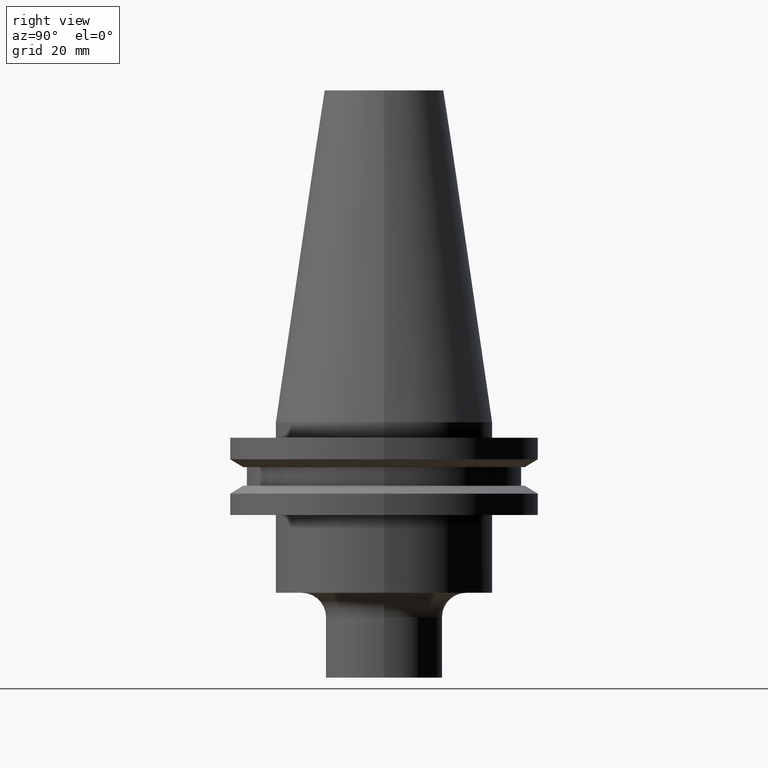
[diagram: clean part render]
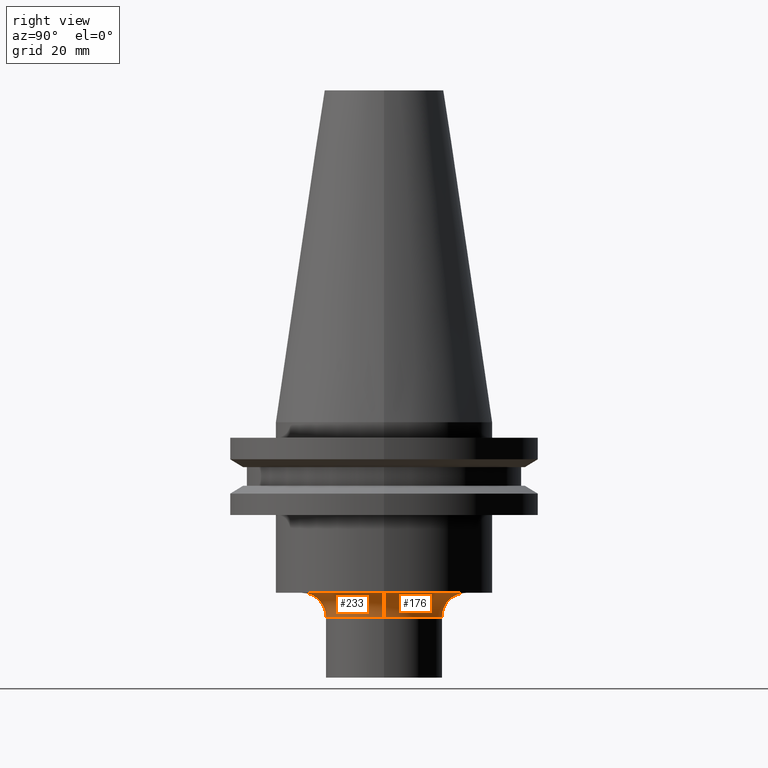
[diagram: same view with one multi-face feature highlighted, each face labeled with its STEP entity id]
A machine part, right view. The highlighted faces form ONE feature: a constant-radius fillet chain: 2 tangent blend faces with common blend radius 5 mm. The faces share edges in the B-rep.
Their STEP definitions:
[1] entity #176 (Torus):
#33 = EDGE_CURVE ( 'NONE', #762, #588, #662, .T. ) ;
#36 = ORIENTED_EDGE ( 'NONE', *, *, #749, .F. ) ;
#39 = AXIS2_PLACEMENT_3D ( 'NONE', #694, #623, #521 ) ;
#47 = DIRECTION ( 'NONE',  ( 1.000000000000000000, 0.000000000000000000, 0.000000000000000000 ) ) ;
#50 = DIRECTION ( 'NONE',  ( -0.000000000000000000, -0.000000000000000000, 1.000000000000000000 ) ) ;
#122 = EDGE_LOOP ( 'NONE', ( #36, #203, #319, #477 ) ) ;
#152 = CARTESIAN_POINT ( 'NONE',  ( -17.00000000000000000, 2.081899558550500280E-15, -35.04999999999999716 ) ) ;
#174 = CARTESIAN_POINT ( 'NONE',  ( 0.000000000000000000, 0.000000000000000000, -40.04999999999999716 ) ) ;
#176 = ADVANCED_FACE ( 'NONE', ( #649 ), #379, .F. ) ;
#195 = DIRECTION ( 'NONE',  ( -0.000000000000000000, -0.000000000000000000, 1.000000000000000000 ) ) ;
#203 = ORIENTED_EDGE ( 'NONE', *, *, #33, .F. ) ;
#260 = VERTEX_POINT ( 'NONE', #403 ) ;
#273 = CARTESIAN_POINT ( 'NONE',  ( -12.00000000000000000, 1.469576158976823947E-15, -40.04999999999999716 ) ) ;
#310 = CARTESIAN_POINT ( 'NONE',  ( 0.000000000000000000, 0.000000000000000000, -40.04999999999999716 ) ) ;
#316 = DIRECTION ( 'NONE',  ( 1.224646799147353207E-16, 1.000000000000000000, 0.000000000000000000 ) ) ;
#319 = ORIENTED_EDGE ( 'NONE', *, *, #613, .T. ) ;
#341 = DIRECTION ( 'NONE',  ( 0.000000000000000000, 0.000000000000000000, -1.000000000000000000 ) ) ;
#379 = TOROIDAL_SURFACE ( 'NONE', #431, 17.00000000000000000, 4.999999999999999112 ) ;
#401 = EDGE_CURVE ( 'NONE', #260, #482, #533, .T. ) ;
#403 = CARTESIAN_POINT ( 'NONE',  ( 12.00000000000000000, 0.000000000000000000, -40.04999999999999716 ) ) ;
#420 = CARTESIAN_POINT ( 'NONE',  ( 17.00000000000000000, 0.000000000000000000, -35.04999999999999716 ) ) ;
#428 = DIRECTION ( 'NONE',  ( -1.000000000000000000, 1.224646799147353454E-16, 0.000000000000000000 ) ) ;
#431 = AXIS2_PLACEMENT_3D ( 'NONE', #174, #50, #47 ) ;
#477 = ORIENTED_EDGE ( 'NONE', *, *, #401, .T. ) ;
#482 = VERTEX_POINT ( 'NONE', #273 ) ;
#483 = AXIS2_PLACEMENT_3D ( 'NONE', #310, #195, #659 ) ;
#521 = DIRECTION ( 'NONE',  ( 1.000000000000000000, 0.000000000000000000, 0.000000000000000000 ) ) ;
#528 = DIRECTION ( 'NONE',  ( 0.000000000000000000, -1.000000000000000000, 0.000000000000000000 ) ) ;
#533 = CIRCLE ( 'NONE', #483, 12.00000000000000000 ) ;
#546 = CIRCLE ( 'NONE', #596, 4.999999999999997335 ) ;
#588 = VERTEX_POINT ( 'NONE', #152 ) ;
#596 = AXIS2_PLACEMENT_3D ( 'NONE', #599, #528, #341 ) ;
#597 = AXIS2_PLACEMENT_3D ( 'NONE', #671, #316, #428 ) ;
#599 = CARTESIAN_POINT ( 'NONE',  ( 17.00000000000000000, 0.000000000000000000, -40.04999999999999716 ) ) ;
#613 = EDGE_CURVE ( 'NONE', #762, #260, #546, .T. ) ;
#623 = DIRECTION ( 'NONE',  ( -0.000000000000000000, -0.000000000000000000, 1.000000000000000000 ) ) ;
#642 = CIRCLE ( 'NONE', #597, 4.999999999999997335 ) ;
#649 = FACE_OUTER_BOUND ( 'NONE', #122, .T. ) ;
#659 = DIRECTION ( 'NONE',  ( 1.000000000000000000, 0.000000000000000000, 0.000000000000000000 ) ) ;
#662 = CIRCLE ( 'NONE', #39, 17.00000000000000000 ) ;
#671 = CARTESIAN_POINT ( 'NONE',  ( -17.00000000000000000, 2.081899558550500280E-15, -40.04999999999999716 ) ) ;
#694 = CARTESIAN_POINT ( 'NONE',  ( 0.000000000000000000, 0.000000000000000000, -35.04999999999999716 ) ) ;
#749 = EDGE_CURVE ( 'NONE', #588, #482, #642, .T. ) ;
#762 = VERTEX_POINT ( 'NONE', #420 ) ;
[2] entity #233 (Torus):
#4 = AXIS2_PLACEMENT_3D ( 'NONE', #354, #359, #231 ) ;
#11 = ORIENTED_EDGE ( 'NONE', *, *, #613, .F. ) ;
#30 = AXIS2_PLACEMENT_3D ( 'NONE', #705, #293, #772 ) ;
#67 = DIRECTION ( 'NONE',  ( -0.000000000000000000, -0.000000000000000000, 1.000000000000000000 ) ) ;
#80 = CIRCLE ( 'NONE', #30, 17.00000000000000000 ) ;
#147 = ORIENTED_EDGE ( 'NONE', *, *, #749, .T. ) ;
#152 = CARTESIAN_POINT ( 'NONE',  ( -17.00000000000000000, 2.081899558550500280E-15, -35.04999999999999716 ) ) ;
#168 = CIRCLE ( 'NONE', #716, 12.00000000000000000 ) ;
#231 = DIRECTION ( 'NONE',  ( 1.000000000000000000, 0.000000000000000000, 0.000000000000000000 ) ) ;
#233 = ADVANCED_FACE ( 'NONE', ( #532 ), #283, .F. ) ;
#250 = ORIENTED_EDGE ( 'NONE', *, *, #689, .F. ) ;
#260 = VERTEX_POINT ( 'NONE', #403 ) ;
#273 = CARTESIAN_POINT ( 'NONE',  ( -12.00000000000000000, 1.469576158976823947E-15, -40.04999999999999716 ) ) ;
#283 = TOROIDAL_SURFACE ( 'NONE', #4, 17.00000000000000000, 4.999999999999999112 ) ;
#293 = DIRECTION ( 'NONE',  ( -0.000000000000000000, -0.000000000000000000, 1.000000000000000000 ) ) ;
#316 = DIRECTION ( 'NONE',  ( 1.224646799147353207E-16, 1.000000000000000000, 0.000000000000000000 ) ) ;
#341 = DIRECTION ( 'NONE',  ( 0.000000000000000000, 0.000000000000000000, -1.000000000000000000 ) ) ;
#354 = CARTESIAN_POINT ( 'NONE',  ( 0.000000000000000000, 0.000000000000000000, -40.04999999999999716 ) ) ;
#359 = DIRECTION ( 'NONE',  ( -0.000000000000000000, -0.000000000000000000, 1.000000000000000000 ) ) ;
#388 = EDGE_CURVE ( 'NONE', #482, #260, #168, .T. ) ;
#403 = CARTESIAN_POINT ( 'NONE',  ( 12.00000000000000000, 0.000000000000000000, -40.04999999999999716 ) ) ;
#420 = CARTESIAN_POINT ( 'NONE',  ( 17.00000000000000000, 0.000000000000000000, -35.04999999999999716 ) ) ;
#428 = DIRECTION ( 'NONE',  ( -1.000000000000000000, 1.224646799147353454E-16, 0.000000000000000000 ) ) ;
#482 = VERTEX_POINT ( 'NONE', #273 ) ;
#493 = DIRECTION ( 'NONE',  ( 1.000000000000000000, 0.000000000000000000, 0.000000000000000000 ) ) ;
#494 = ORIENTED_EDGE ( 'NONE', *, *, #388, .T. ) ;
#528 = DIRECTION ( 'NONE',  ( 0.000000000000000000, -1.000000000000000000, 0.000000000000000000 ) ) ;
#532 = FACE_OUTER_BOUND ( 'NONE', #535, .T. ) ;
#535 = EDGE_LOOP ( 'NONE', ( #250, #147, #494, #11 ) ) ;
#546 = CIRCLE ( 'NONE', #596, 4.999999999999997335 ) ;
#588 = VERTEX_POINT ( 'NONE', #152 ) ;
#596 = AXIS2_PLACEMENT_3D ( 'NONE', #599, #528, #341 ) ;
#597 = AXIS2_PLACEMENT_3D ( 'NONE', #671, #316, #428 ) ;
#599 = CARTESIAN_POINT ( 'NONE',  ( 17.00000000000000000, 0.000000000000000000, -40.04999999999999716 ) ) ;
#613 = EDGE_CURVE ( 'NONE', #762, #260, #546, .T. ) ;
#642 = CIRCLE ( 'NONE', #597, 4.999999999999997335 ) ;
#671 = CARTESIAN_POINT ( 'NONE',  ( -17.00000000000000000, 2.081899558550500280E-15, -40.04999999999999716 ) ) ;
#689 = EDGE_CURVE ( 'NONE', #588, #762, #80, .T. ) ;
#705 = CARTESIAN_POINT ( 'NONE',  ( 0.000000000000000000, 0.000000000000000000, -35.04999999999999716 ) ) ;
#715 = CARTESIAN_POINT ( 'NONE',  ( 0.000000000000000000, 0.000000000000000000, -40.04999999999999716 ) ) ;
#716 = AXIS2_PLACEMENT_3D ( 'NONE', #715, #67, #493 ) ;
#749 = EDGE_CURVE ( 'NONE', #588, #482, #642, .T. ) ;
#762 = VERTEX_POINT ( 'NONE', #420 ) ;
#772 = DIRECTION ( 'NONE',  ( 1.000000000000000000, 0.000000000000000000, 0.000000000000000000 ) ) ;